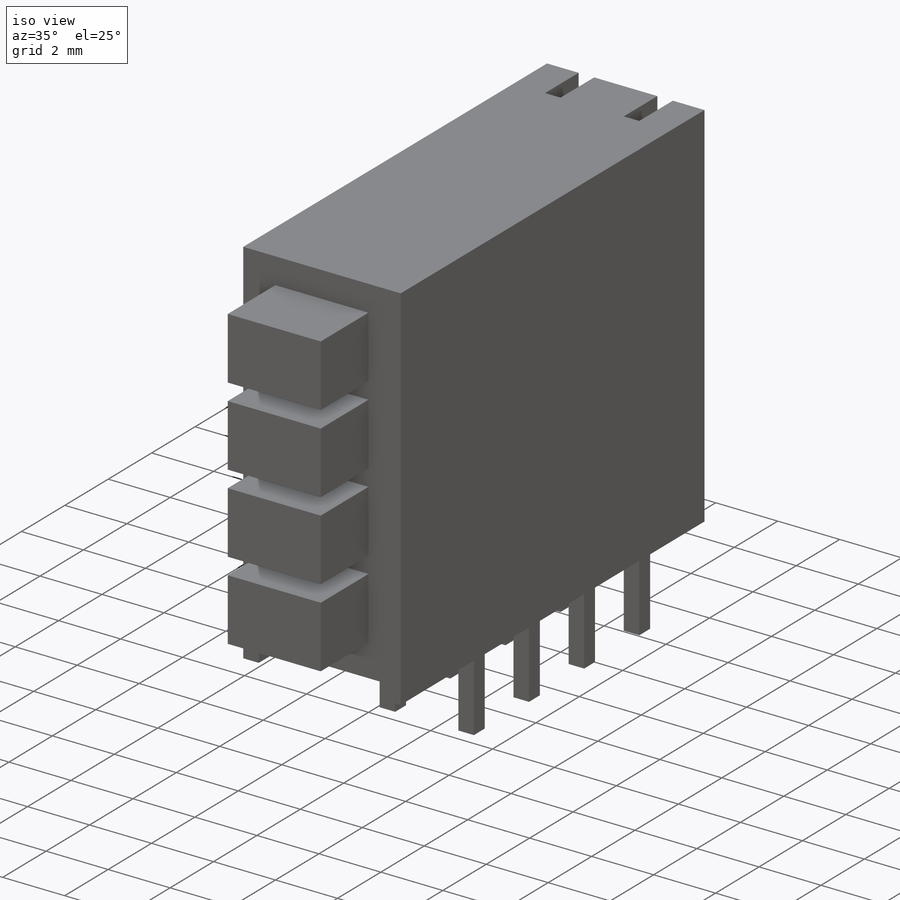
[diagram: iso view]
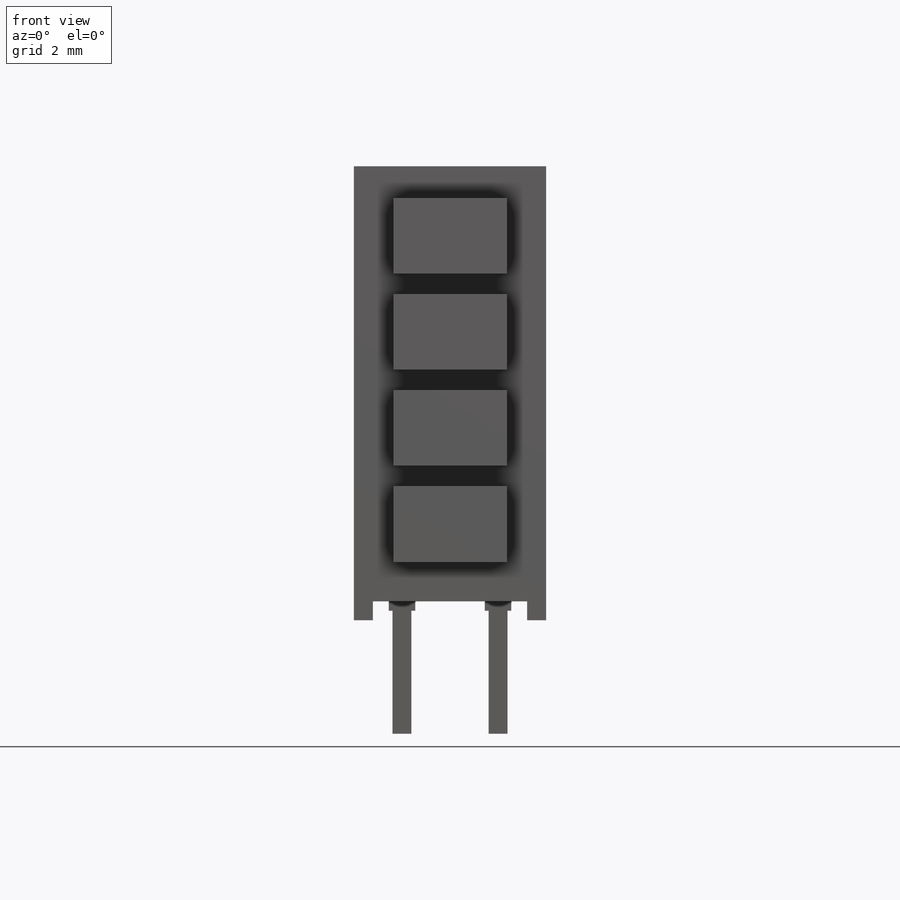
[diagram: front view]
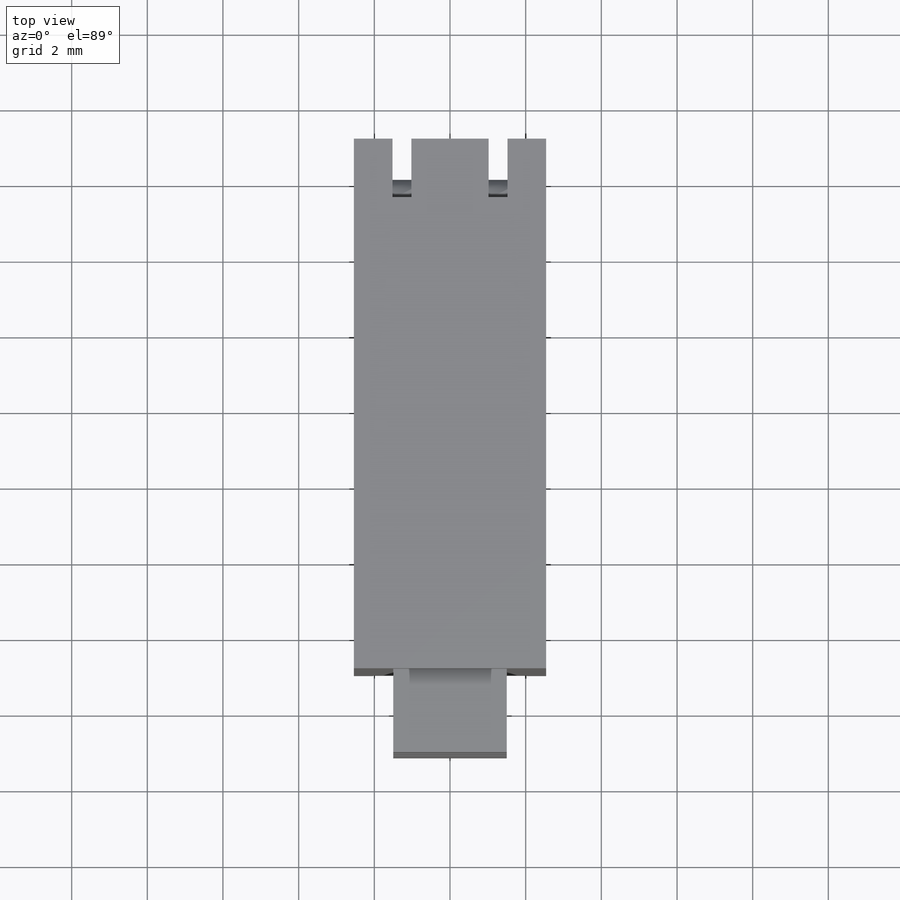
[diagram: top view]
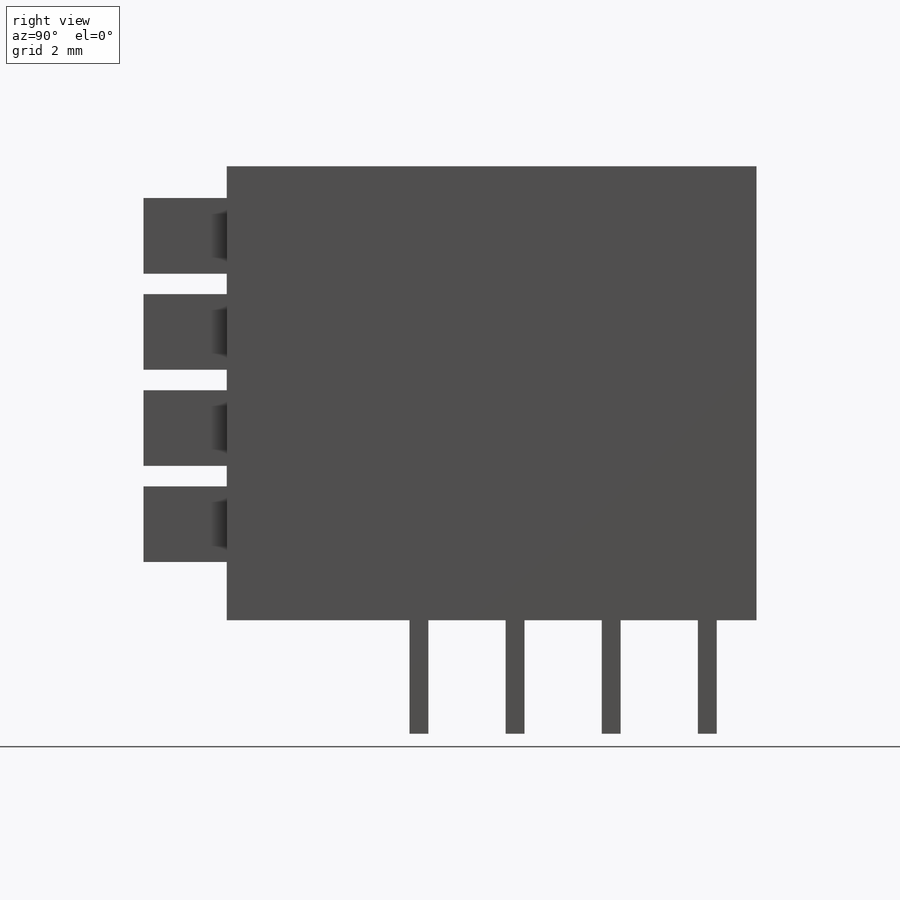
[diagram: right view]
SOLIDWORKS PART (.sldprt)
format: sldprt  version: not decoded by parser v0  size: 941,568 bytes
history: native  units: mm
features: sketch x11, cut_extrude x6, extrude x5, material x1, fillet x1 (+12 scaffold rows collapsed)
feature tree (36):
  scaffold x12  (default folders/planes/origin — collapsed)
  material  "Material <not specified>"
  sketch  "Sketch1"  dims[D1=12.0mm D2=14.0mm]
  extrude  "Extrude1"  Depth=5.08mm
  sketch  "Sketch2"  dims[D1=3.0mm D2=2.0mm D3=2.54mm D4=2.54mm D5=2.54mm D6=2.54mm D7=0.5mm D8=0.5mm D9=0.5mm]
  extrude  "Extrude2"  Depth=2.2mm
  cut_extrude  "Cut-Extrude1"  [1 undecoded]
  sketch  "Sketch2<3>"
  sketch  "Sketch3"  dims[c1.D1=0.5mm c1.D2=0.5mm c1.D3=0.5mm c1.D4=0.5mm c1.D5=0.5mm c1.D6=2.54mm c1.D7=0.5mm c2.D7=90.0deg c3.D7=2.54mm c3.D8=0.5mm c4.D8=90.0deg c5.D8=2.54mm c5.D9=5.08mm c5.D10=2.54mm]
  cut_extrude  "Cut-Extrude2"  [1 undecoded]
  extrude  "Extrude4"  [1 undecoded]
  sketch  "Sketch3<3>"
  extrude  "Extrude6"  [1 undecoded]
  sketch  "Sketch3<4>"  dims[D1=3.5mm]
  cut_extrude  "Cut-Extrude3"  [1 undecoded]
  sketch  "Sketch3<5>"
  cut_extrude  "Cut-Extrude4"  [1 undecoded]
  sketch  "Sketch3<6>"
  cut_extrude  "Cut-Extrude6"  [1 undecoded]
  sketch  "Sketch3<7>"
  fillet  "Fillet1"  Radius=0.5mm
  sketch  "Sketch4"  dims[D1=0.7mm D2=0.25mm]
  extrude  "Extrude7"  [1 undecoded]
  sketch  "Sketch5"
  cut_extrude  "Cut-Extrude7"  Depth=0.01mm
decode coverage: 9 of 23 modeling features carry decoded parameters
note: 8 parameter values undecoded
summary: no parameter record found for 8 features
note: suppression state not decoded; provenance and decode notes live in map.json
